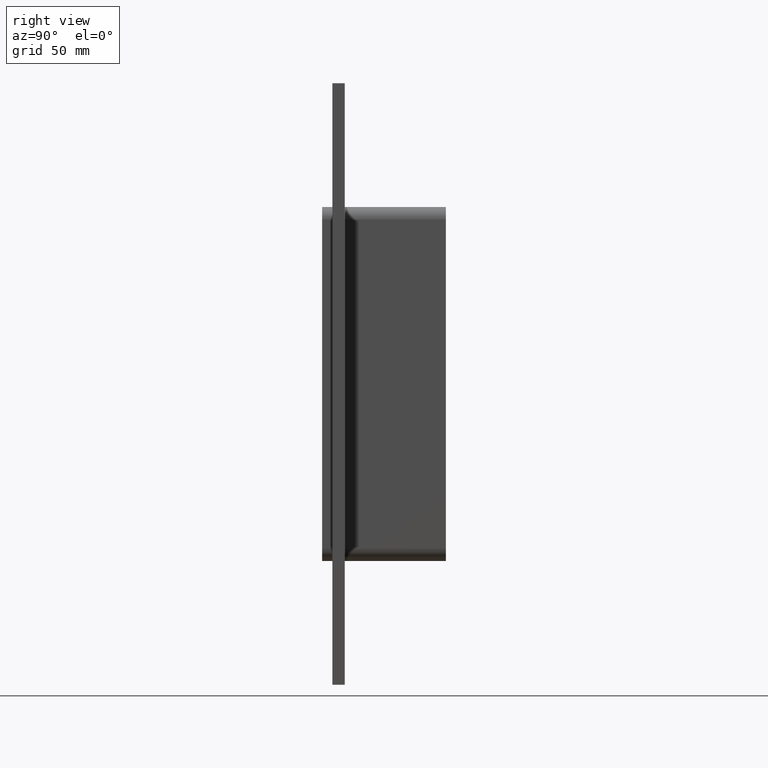
[diagram: clean part render]
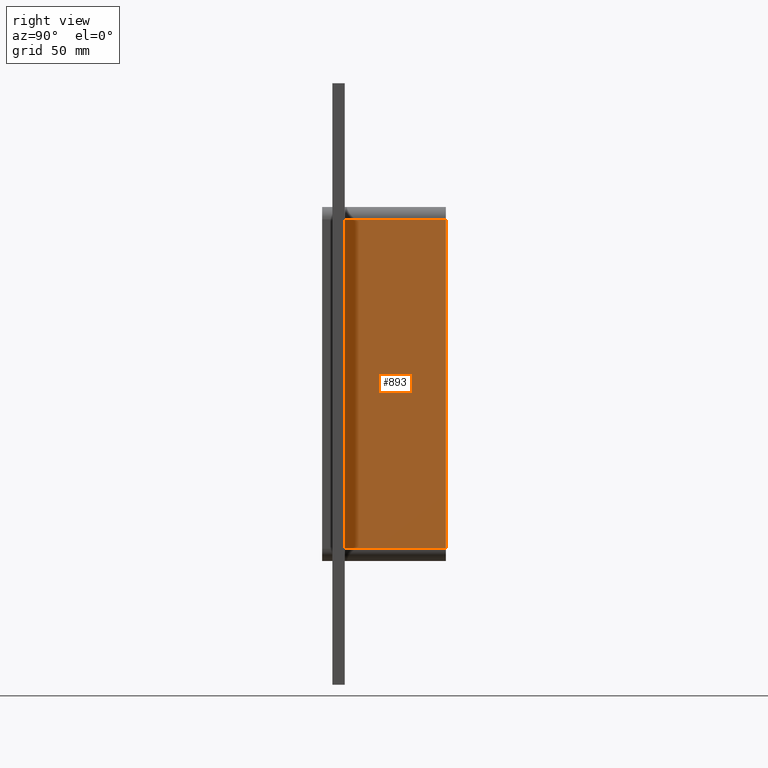
[diagram: same view with one face highlighted and labeled with its STEP entity id]
A machine part, right view. The second image highlights one B-rep face of the part: STEP entity #893.
In plain terms, the highlighted planar face has unit normal (1, 0, 0).
Its self-contained STEP definition (entity closure, byte-faithful):
#109=CARTESIAN_POINT('',(36.25,6.000000000000001,79.750000000000014));
#110=VERTEX_POINT('',#109);
#160=CARTESIAN_POINT('',(36.25,6.000000000000001,-79.750000000000057));
#161=VERTEX_POINT('',#160);
#169=CARTESIAN_POINT('',(36.25,6.000000000000001,79.750000000000014));
#170=DIRECTION('',(0.0,0.0,-1.0));
#171=VECTOR('',#170,159.50000000000006);
#172=LINE('',#169,#171);
#173=EDGE_CURVE('',#110,#161,#172,.T.);
#809=CARTESIAN_POINT('',(36.25,55.0,79.750000000000014));
#810=VERTEX_POINT('',#809);
#811=CARTESIAN_POINT('',(36.25,55.0,79.750000000000014));
#812=DIRECTION('',(0.0,-1.0,0.0));
#813=VECTOR('',#812,49.0);
#814=LINE('',#811,#813);
#815=EDGE_CURVE('',#810,#110,#814,.T.);
#859=CARTESIAN_POINT('',(36.25,55.0,-79.750000000000057));
#860=VERTEX_POINT('',#859);
#868=CARTESIAN_POINT('',(36.25,6.000000000000001,-79.750000000000057));
#869=DIRECTION('',(0.0,1.0,0.0));
#870=VECTOR('',#869,49.0);
#871=LINE('',#868,#870);
#872=EDGE_CURVE('',#161,#860,#871,.T.);
#877=CARTESIAN_POINT('',(36.25,0.0,79.750000000000014));
#878=DIRECTION('',(1.0,0.0,0.0));
#879=DIRECTION('',(0.0,0.0,-1.0));
#880=AXIS2_PLACEMENT_3D('',#877,#878,#879);
#881=PLANE('',#880);
#882=ORIENTED_EDGE('',*,*,#173,.T.);
#883=ORIENTED_EDGE('',*,*,#872,.T.);
#884=CARTESIAN_POINT('',(36.25,55.0,79.750000000000014));
#885=DIRECTION('',(0.0,0.0,-1.0));
#886=VECTOR('',#885,159.50000000000006);
#887=LINE('',#884,#886);
#888=EDGE_CURVE('',#810,#860,#887,.T.);
#889=ORIENTED_EDGE('',*,*,#888,.F.);
#890=ORIENTED_EDGE('',*,*,#815,.T.);
#891=EDGE_LOOP('',(#882,#883,#889,#890));
#892=FACE_OUTER_BOUND('',#891,.T.);
#893=ADVANCED_FACE('',(#892),#881,.T.);